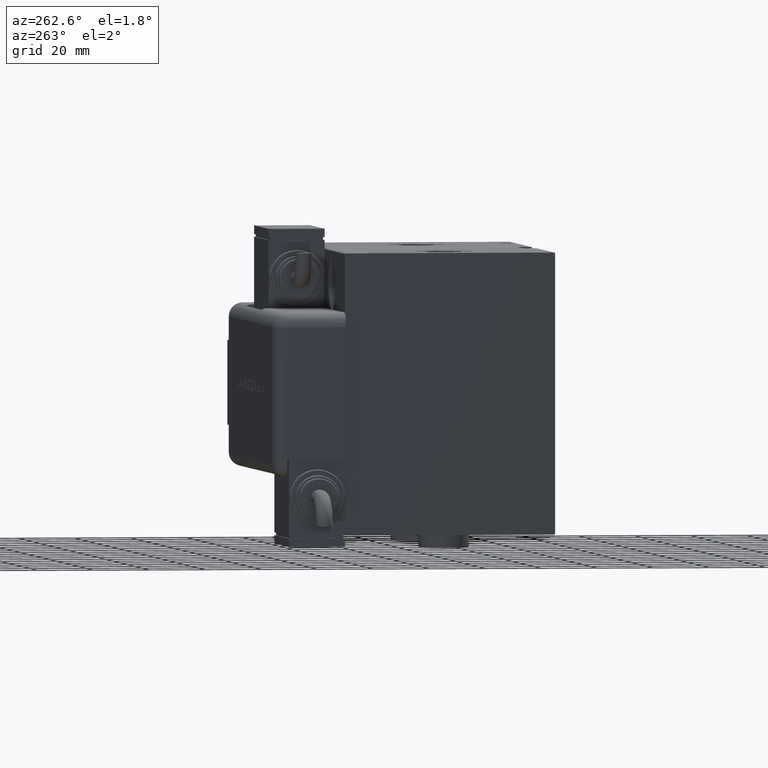
[diagram: clean part render]
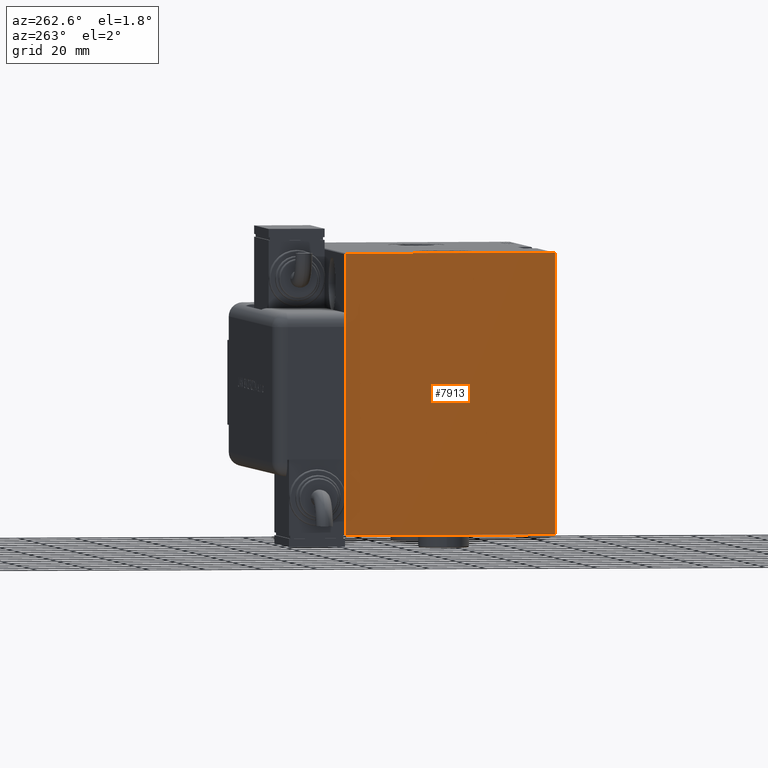
[diagram: same view with one face highlighted and labeled with its STEP entity id]
A machine part, auxiliary view. The second image highlights one B-rep face of the part: STEP entity #7913.
In plain terms, the highlighted planar face has unit normal (-1, 0, 0).
Its self-contained STEP definition (entity closure, byte-faithful):
#969 = ORIENTED_EDGE ( 'NONE', *, *, #16280, .T. ) ;
#2132 = LINE ( 'NONE', #21180, #20284 ) ;
#4141 = ORIENTED_EDGE ( 'NONE', *, *, #38596, .T. ) ;
#4611 = DIRECTION ( 'NONE',  ( 0.000000000000000000, -1.387778780781445182E-16, 1.000000000000000000 ) ) ;
#4709 = CARTESIAN_POINT ( 'NONE',  ( 123.0000000000000000, -37.50000000000000000, 50.00000000000000000 ) ) ;
#4830 = EDGE_CURVE ( 'NONE', #16258, #37286, #29420, .T. ) ;
#5018 = LINE ( 'NONE', #4709, #38119 ) ;
#6007 = ORIENTED_EDGE ( 'NONE', *, *, #42691, .T. ) ;
#7913 = ADVANCED_FACE ( 'NONE', ( #33050 ), #56208, .T. ) ;
#7994 = VECTOR ( 'NONE', #29118, 1000.000000000000114 ) ;
#8383 = EDGE_CURVE ( 'NONE', #18430, #16258, #5018, .T. ) ;
#8675 = DIRECTION ( 'NONE',  ( 0.000000000000000000, 0.000000000000000000, -1.000000000000000000 ) ) ;
#9033 = EDGE_CURVE ( 'NONE', #20165, #15119, #20752, .T. ) ;
#9300 = DIRECTION ( 'NONE',  ( 1.000000000000000000, 0.000000000000000000, 0.000000000000000000 ) ) ;
#10320 = CARTESIAN_POINT ( 'NONE',  ( 123.0000000000000000, -37.19999999999999574, 50.00000000000000000 ) ) ;
#11154 = AXIS2_PLACEMENT_3D ( 'NONE', #32425, #9300, #8675 ) ;
#11210 = LINE ( 'NONE', #49662, #47638 ) ;
#11446 = CARTESIAN_POINT ( 'NONE',  ( 123.0000000000000000, 37.49999999999999289, 49.70000000000003126 ) ) ;
#11685 = ORIENTED_EDGE ( 'NONE', *, *, #4830, .T. ) ;
#14314 = CARTESIAN_POINT ( 'NONE',  ( 123.0000000000000000, 37.20000000000000995, 50.00000000000001421 ) ) ;
#14366 = ORIENTED_EDGE ( 'NONE', *, *, #8383, .T. ) ;
#15028 = CARTESIAN_POINT ( 'NONE',  ( 123.0000000000000000, -43.60000000000000853, -43.60000000000000853 ) ) ;
#15119 = VERTEX_POINT ( 'NONE', #35331 ) ;
#16258 = VERTEX_POINT ( 'NONE', #49052 ) ;
#16280 = EDGE_CURVE ( 'NONE', #32088, #53271, #2132, .T. ) ;
#18347 = DIRECTION ( 'NONE',  ( 0.000000000000000000, -0.7071067811865556774, -0.7071067811865393571 ) ) ;
#18430 = VERTEX_POINT ( 'NONE', #58600 ) ;
#19158 = VERTEX_POINT ( 'NONE', #11446 ) ;
#20165 = VERTEX_POINT ( 'NONE', #45130 ) ;
#20284 = VECTOR ( 'NONE', #59331, 1000.000000000000000 ) ;
#20752 = LINE ( 'NONE', #49234, #23159 ) ;
#21180 = CARTESIAN_POINT ( 'NONE',  ( 123.0000000000000000, 37.49999999999999289, 50.00000000000001421 ) ) ;
#22303 = ORIENTED_EDGE ( 'NONE', *, *, #22470, .T. ) ;
#22470 = EDGE_CURVE ( 'NONE', #37286, #20165, #40307, .T. ) ;
#22732 = CARTESIAN_POINT ( 'NONE',  ( 123.0000000000000000, -43.59999999999957510, 43.60000000000058407 ) ) ;
#23159 = VECTOR ( 'NONE', #39826, 1000.000000000000000 ) ;
#25026 = ORIENTED_EDGE ( 'NONE', *, *, #56967, .T. ) ;
#26227 = DIRECTION ( 'NONE',  ( 0.000000000000000000, 1.000000000000000000, 9.251858538542970348E-17 ) ) ;
#29118 = DIRECTION ( 'NONE',  ( -0.000000000000000000, 0.7071067811865474617, -0.7071067811865474617 ) ) ;
#29420 = LINE ( 'NONE', #15028, #7994 ) ;
#32088 = VERTEX_POINT ( 'NONE', #14314 ) ;
#32425 = CARTESIAN_POINT ( 'NONE',  ( 123.0000000000000000, 0.000000000000000000, 0.000000000000000000 ) ) ;
#33049 = LINE ( 'NONE', #47750, #37187 ) ;
#33050 = FACE_OUTER_BOUND ( 'NONE', #41856, .T. ) ;
#34340 = VECTOR ( 'NONE', #18347, 1000.000000000000000 ) ;
#35331 = CARTESIAN_POINT ( 'NONE',  ( 123.0000000000000000, 37.50000000000000711, -49.70000000000003126 ) ) ;
#37187 = VECTOR ( 'NONE', #4611, 1000.000000000000000 ) ;
#37286 = VERTEX_POINT ( 'NONE', #49110 ) ;
#38119 = VECTOR ( 'NONE', #50756, 1000.000000000000000 ) ;
#38596 = EDGE_CURVE ( 'NONE', #15119, #19158, #33049, .T. ) ;
#39826 = DIRECTION ( 'NONE',  ( -0.000000000000000000, 0.7071067811865556774, 0.7071067811865393571 ) ) ;
#40307 = LINE ( 'NONE', #50016, #58629 ) ;
#41296 = ORIENTED_EDGE ( 'NONE', *, *, #9033, .T. ) ;
#41856 = EDGE_LOOP ( 'NONE', ( #22303, #41296, #4141, #25026, #969, #6007, #14366, #11685 ) ) ;
#42691 = EDGE_CURVE ( 'NONE', #53271, #18430, #47133, .T. ) ;
#45130 = CARTESIAN_POINT ( 'NONE',  ( 123.0000000000000000, 37.20000000000001705, -50.00000000000000711 ) ) ;
#47133 = LINE ( 'NONE', #22732, #34340 ) ;
#47638 = VECTOR ( 'NONE', #50282, 1000.000000000000000 ) ;
#47750 = CARTESIAN_POINT ( 'NONE',  ( 123.0000000000000000, 37.50000000000000711, -50.00000000000000711 ) ) ;
#49052 = CARTESIAN_POINT ( 'NONE',  ( 123.0000000000000000, -37.50000000000000000, -49.70000000000002416 ) ) ;
#49110 = CARTESIAN_POINT ( 'NONE',  ( 123.0000000000000000, -37.20000000000000284, -50.00000000000001421 ) ) ;
#49234 = CARTESIAN_POINT ( 'NONE',  ( 123.0000000000000000, 43.59999999999958220, -43.60000000000059117 ) ) ;
#49662 = CARTESIAN_POINT ( 'NONE',  ( 123.0000000000000000, 43.60000000000044196, 43.59999999999944009 ) ) ;
#50016 = CARTESIAN_POINT ( 'NONE',  ( 123.0000000000000000, -37.50000000000000000, -50.00000000000001421 ) ) ;
#50282 = DIRECTION ( 'NONE',  ( -0.000000000000000000, -0.7071067811865393571, 0.7071067811865556774 ) ) ;
#50756 = DIRECTION ( 'NONE',  ( 0.000000000000000000, 0.000000000000000000, -1.000000000000000000 ) ) ;
#53271 = VERTEX_POINT ( 'NONE', #10320 ) ;
#56208 = PLANE ( 'NONE',  #11154 ) ;
#56967 = EDGE_CURVE ( 'NONE', #19158, #32088, #11210, .T. ) ;
#58600 = CARTESIAN_POINT ( 'NONE',  ( 123.0000000000000000, -37.50000000000000000, 49.70000000000000995 ) ) ;
#58629 = VECTOR ( 'NONE', #26227, 1000.000000000000000 ) ;
#59331 = DIRECTION ( 'NONE',  ( 0.000000000000000000, -1.000000000000000000, -1.850371707708594563E-16 ) ) ;